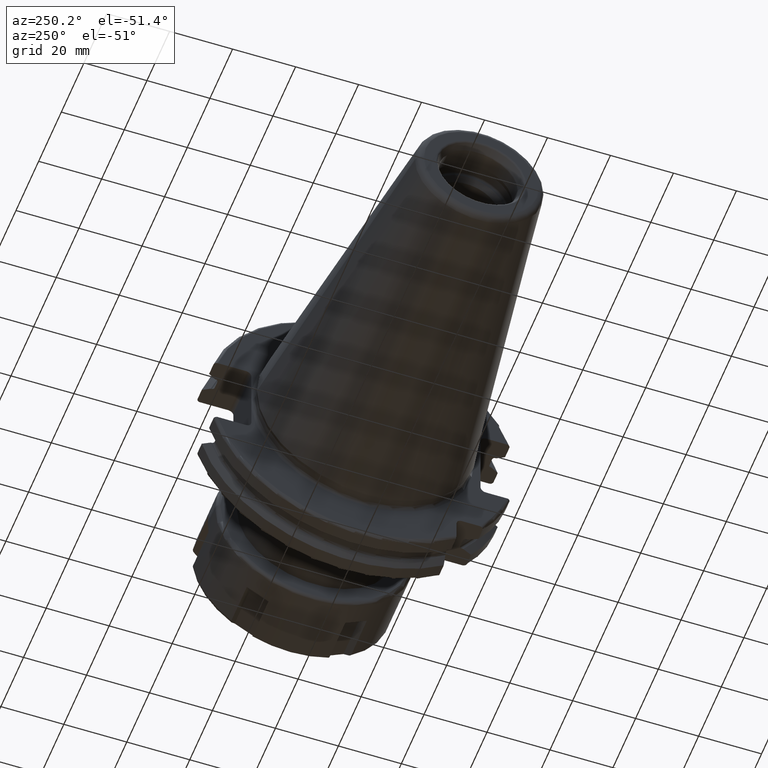
[diagram: clean part render]
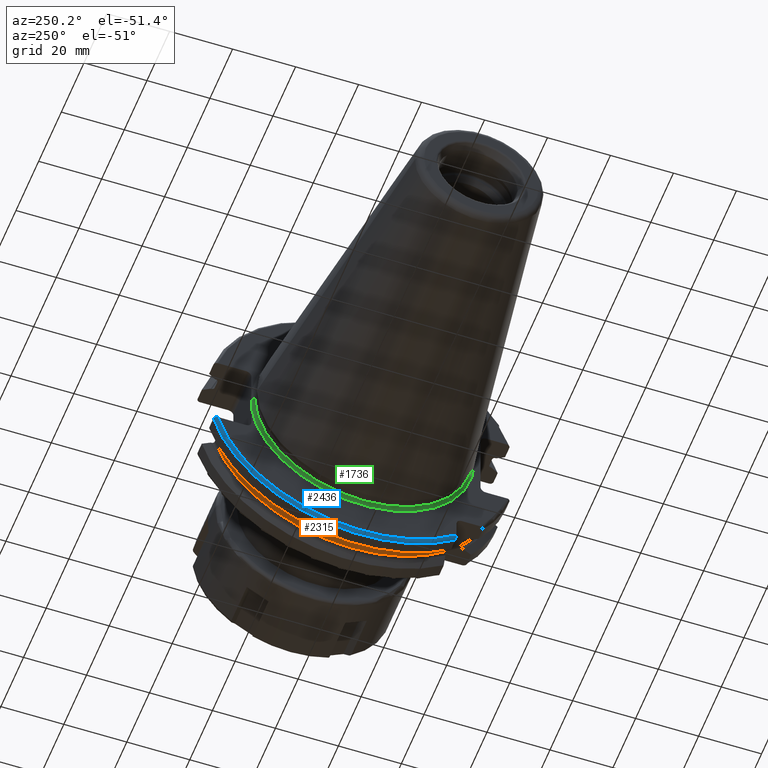
[diagram: same view with three faces highlighted in distinct colors, each labeled with its STEP entity id]
A machine part, auxiliary view with three faces highlighted in distinct colors.
Their STEP definitions:

[orange] entity #2315 — the highlighted cylindrical surface (partial cylindrical patch) has radius 45.5 mm, axis along (1, 0, 0).
#614=CARTESIAN_POINT('',(1.23375E1,0.E0,0.E0));
#615=DIRECTION('',(-1.E0,0.E0,0.E0));
#616=DIRECTION('',(0.E0,9.589673631435E-1,-2.835164835165E-1));
#617=AXIS2_PLACEMENT_3D('',#614,#615,#616);
#657=DIRECTION('',(1.E0,0.E0,0.E0));
#658=VECTOR('',#657,2.325E0);
#659=CARTESIAN_POINT('',(1.00125E1,4.363301502303E1,-1.29E1));
#660=LINE('',#659,#658);
#661=CARTESIAN_POINT('',(1.00125E1,0.E0,0.E0));
#662=DIRECTION('',(-1.E0,0.E0,0.E0));
#663=DIRECTION('',(0.E0,9.589673631435E-1,-2.835164835165E-1));
#664=AXIS2_PLACEMENT_3D('',#661,#662,#663);
#666=DIRECTION('',(1.E0,0.E0,0.E0));
#667=VECTOR('',#666,2.325E0);
#668=CARTESIAN_POINT('',(1.00125E1,-2.985E1,-3.433988206153E1));
#669=LINE('',#668,#667);
#692=CARTESIAN_POINT('',(1.00125E1,4.363301502303E1,-1.29E1));
#1430=VERTEX_POINT('',#692);
#1432=CARTESIAN_POINT('',(1.23375E1,4.363301502303E1,-1.29E1));
#1433=VERTEX_POINT('',#1432);
#1471=CARTESIAN_POINT('',(1.00125E1,-2.985E1,-3.433988206153E1));
#1472=VERTEX_POINT('',#1471);
#1473=CARTESIAN_POINT('',(1.23375E1,-2.985E1,-3.433988206153E1));
#1474=VERTEX_POINT('',#1473);
#2302=CARTESIAN_POINT('',(7.325E0,0.E0,0.E0));
#2303=DIRECTION('',(1.E0,0.E0,0.E0));
#2304=DIRECTION('',(0.E0,-1.E0,0.E0));
#2305=AXIS2_PLACEMENT_3D('',#2302,#2303,#2304);
#2306=CYLINDRICAL_SURFACE('',#2305,4.55E1);
#2307=ORIENTED_EDGE('',*,*,#1928,.F.);
#2309=ORIENTED_EDGE('',*,*,#2308,.T.);
#2311=ORIENTED_EDGE('',*,*,#2310,.T.);
#2312=ORIENTED_EDGE('',*,*,#2280,.F.);
#2313=EDGE_LOOP('',(#2307,#2309,#2311,#2312));
#2314=FACE_OUTER_BOUND('',#2313,.F.);
#2315=ADVANCED_FACE('',(#2314),#2306,.T.);
#618=CIRCLE('',#617,4.55E1);
#665=CIRCLE('',#664,4.55E1);
#1928=EDGE_CURVE('',#1430,#1433,#660,.T.);
#2280=EDGE_CURVE('',#1433,#1474,#618,.T.);
#2308=EDGE_CURVE('',#1430,#1472,#665,.T.);
#2310=EDGE_CURVE('',#1472,#1474,#669,.T.);

[blue] entity #2436 — the highlighted toroidal blend (fillet) surface has major radius 47.7375 mm and minor (blend) radius 1 mm.
#296=CARTESIAN_POINT('',(3.2E0,0.E0,0.E0));
#297=DIRECTION('',(-1.E0,0.E0,0.E0));
#298=DIRECTION('',(0.E0,9.627964123359E-1,-2.702278083268E-1));
#299=AXIS2_PLACEMENT_3D('',#296,#297,#298);
#755=CARTESIAN_POINT('',(3.2E0,4.596149373389E1,-1.29E1));
#756=CARTESIAN_POINT('',(3.2E0,4.604026443227E1,-1.29E1));
#757=CARTESIAN_POINT('',(3.216813255287E0,4.619328239852E1,-1.29E1));
#758=CARTESIAN_POINT('',(3.290538328370E0,4.641376542139E1,-1.29E1));
#759=CARTESIAN_POINT('',(3.409705660893E0,4.661163928454E1,-1.29E1));
#760=CARTESIAN_POINT('',(3.568375595419E0,4.677744698912E1,-1.29E1));
#761=CARTESIAN_POINT('',(3.759602935675E0,4.690321007119E1,-1.29E1));
#762=CARTESIAN_POINT('',(3.974378910530E0,4.698149887214E1,-1.29E1));
#763=CARTESIAN_POINT('',(4.123284460641E0,4.699929686974E1,-1.29E1));
#764=CARTESIAN_POINT('',(4.2E0,4.699929686974E1,-1.29E1));
#766=CARTESIAN_POINT('',(4.2E0,-2.985E1,-3.852689198793E1));
#767=CARTESIAN_POINT('',(4.121351701574E0,-2.985E1,-3.852689198793E1));
#768=CARTESIAN_POINT('',(3.966904735014E0,-2.985E1,-3.850408165447E1));
#769=CARTESIAN_POINT('',(3.738653969764E0,-2.985E1,-3.839864952437E1));
#770=CARTESIAN_POINT('',(3.529185168070E0,-2.985E1,-3.821837887996E1));
#771=CARTESIAN_POINT('',(3.352580918325E0,-2.985E1,-3.796237987635E1));
#772=CARTESIAN_POINT('',(3.229812788304E0,-2.985E1,-3.762998844337E1));
#773=CARTESIAN_POINT('',(3.2E0,-2.985E1,-3.738468079689E1));
#774=CARTESIAN_POINT('',(3.2E0,-2.985E1,-3.725381062724E1));
#776=CARTESIAN_POINT('',(4.2E0,0.E0,0.E0));
#777=DIRECTION('',(-1.E0,0.E0,0.E0));
#778=DIRECTION('',(0.E0,9.643354064066E-1,-2.646832521159E-1));
#779=AXIS2_PLACEMENT_3D('',#776,#777,#778);
#1448=CARTESIAN_POINT('',(4.2E0,4.699929686974E1,-1.29E1));
#1449=VERTEX_POINT('',#1448);
#1465=VERTEX_POINT('',#755);
#1487=CARTESIAN_POINT('',(4.2E0,-2.985E1,-3.852689198793E1));
#1488=VERTEX_POINT('',#1487);
#1489=CARTESIAN_POINT('',(3.2E0,-2.985E1,-3.725381062724E1));
#1490=VERTEX_POINT('',#1489);
#2424=CARTESIAN_POINT('',(4.2E0,0.E0,0.E0));
#2425=DIRECTION('',(1.E0,0.E0,0.E0));
#2426=DIRECTION('',(0.E0,-1.E0,0.E0));
#2427=AXIS2_PLACEMENT_3D('',#2424,#2425,#2426);
#2428=TOROIDAL_SURFACE('',#2427,4.77375E1,1.E0);
#2429=ORIENTED_EDGE('',*,*,#1918,.F.);
#2430=ORIENTED_EDGE('',*,*,#1976,.T.);
#2431=ORIENTED_EDGE('',*,*,#2378,.F.);
#2433=ORIENTED_EDGE('',*,*,#2432,.F.);
#2434=EDGE_LOOP('',(#2429,#2430,#2431,#2433));
#2435=FACE_OUTER_BOUND('',#2434,.F.);
#2436=ADVANCED_FACE('',(#2435),#2428,.T.);
#300=CIRCLE('',#299,4.77375E1);
#765=B_SPLINE_CURVE_WITH_KNOTS('',3,(#755,#756,#757,#758,#759,#760,#761,#762,
#763,#764),.UNSPECIFIED.,.F.,.F.,(4,1,1,1,1,1,1,4),(0.E0,1.428571428571E-1,
2.857142857143E-1,4.285714285714E-1,5.714285714286E-1,7.142857142857E-1,
8.571428571429E-1,1.E0),.UNSPECIFIED.);
#775=B_SPLINE_CURVE_WITH_KNOTS('',3,(#766,#767,#768,#769,#770,#771,#772,#773,
#774),.UNSPECIFIED.,.F.,.F.,(4,1,1,1,1,1,4),(0.E0,1.666666666667E-1,
3.333333333333E-1,5.E-1,6.666666666667E-1,8.333333333333E-1,1.E0),
.UNSPECIFIED.);
#780=CIRCLE('',#779,4.87375E1);
#1918=EDGE_CURVE('',#1465,#1449,#765,.T.);
#1976=EDGE_CURVE('',#1465,#1490,#300,.T.);
#2378=EDGE_CURVE('',#1488,#1490,#775,.T.);
#2432=EDGE_CURVE('',#1449,#1488,#780,.T.);

[green] entity #1736 — the highlighted toroidal blend (fillet) surface has major radius 35.575 mm and minor (blend) radius 1 mm.
#91=CARTESIAN_POINT('',(2.2E0,0.E0,0.E0));
#92=DIRECTION('',(-1.E0,0.E0,0.E0));
#93=DIRECTION('',(0.E0,1.E0,0.E0));
#94=AXIS2_PLACEMENT_3D('',#91,#92,#93);
#96=CARTESIAN_POINT('',(3.161444226151E0,3.53E1,-1.048836461230E-13));
#97=CARTESIAN_POINT('',(3.161444226151E0,3.53E1,-2.287557745851E-1));
#98=CARTESIAN_POINT('',(3.162734010751E0,3.53E1,-6.792530123044E-1));
#99=CARTESIAN_POINT('',(3.167877030309E0,3.53E1,-1.331895850106E0));
#100=CARTESIAN_POINT('',(3.175250793624E0,3.53E1,-1.967616454588E0));
#101=CARTESIAN_POINT('',(3.183670148061E0,3.53E1,-2.589717830169E0));
#102=CARTESIAN_POINT('',(3.191796133338E0,3.53E1,-3.202378106077E0));
#103=CARTESIAN_POINT('',(3.198127290791E0,3.53E1,-3.809054455619E0));
#104=CARTESIAN_POINT('',(3.2E0,3.53E1,-4.213157466434E0));
#105=CARTESIAN_POINT('',(3.2E0,3.53E1,-4.414818795828E0));
#107=CARTESIAN_POINT('',(2.2E0,3.5575E1,0.E0));
#108=DIRECTION('',(0.E0,0.E0,-1.E0));
#109=DIRECTION('',(9.614442261515E-1,-2.75E-1,0.E0));
#110=AXIS2_PLACEMENT_3D('',#107,#108,#109);
#112=CARTESIAN_POINT('',(2.2E0,-3.5575E1,0.E0));
#113=DIRECTION('',(0.E0,0.E0,1.E0));
#114=DIRECTION('',(1.E0,0.E0,0.E0));
#115=AXIS2_PLACEMENT_3D('',#112,#113,#114);
#117=CARTESIAN_POINT('',(3.2E0,0.E0,0.E0));
#118=DIRECTION('',(-1.E0,0.E0,0.E0));
#119=DIRECTION('',(0.E0,9.922698524245E-1,-1.240989120402E-1));
#120=AXIS2_PLACEMENT_3D('',#117,#118,#119);
#945=CARTESIAN_POINT('',(3.161444226151E0,3.53E1,-1.048836461230E-13));
#1326=CARTESIAN_POINT('',(2.2E0,3.4575E1,0.E0));
#1328=VERTEX_POINT('',#1326);
#1330=CARTESIAN_POINT('',(3.2E0,-3.5575E1,0.E0));
#1331=CARTESIAN_POINT('',(2.2E0,-3.4575E1,0.E0));
#1332=VERTEX_POINT('',#1330);
#1333=VERTEX_POINT('',#1331);
#1457=VERTEX_POINT('',#945);
#1458=VERTEX_POINT('',#105);
#1720=CARTESIAN_POINT('',(2.2E0,0.E0,0.E0));
#1721=DIRECTION('',(1.E0,0.E0,0.E0));
#1722=DIRECTION('',(0.E0,-1.E0,0.E0));
#1723=AXIS2_PLACEMENT_3D('',#1720,#1721,#1722);
#1724=TOROIDAL_SURFACE('',#1723,3.5575E1,1.E0);
#1726=ORIENTED_EDGE('',*,*,#1725,.F.);
#1728=ORIENTED_EDGE('',*,*,#1727,.T.);
#1729=ORIENTED_EDGE('',*,*,#1715,.T.);
#1731=ORIENTED_EDGE('',*,*,#1730,.F.);
#1733=ORIENTED_EDGE('',*,*,#1732,.F.);
#1734=EDGE_LOOP('',(#1726,#1728,#1729,#1731,#1733));
#1735=FACE_OUTER_BOUND('',#1734,.F.);
#1736=ADVANCED_FACE('',(#1735),#1724,.F.);
#95=CIRCLE('',#94,3.4575E1);
#106=B_SPLINE_CURVE_WITH_KNOTS('',3,(#96,#97,#98,#99,#100,#101,#102,#103,#104,
#105),.UNSPECIFIED.,.F.,.F.,(4,1,1,1,1,1,1,4),(0.E0,1.428571428571E-1,
2.857142857143E-1,4.285714285714E-1,5.714285714286E-1,7.142857142857E-1,
8.571428571429E-1,1.E0),.UNSPECIFIED.);
#111=CIRCLE('',#110,1.E0);
#116=CIRCLE('',#115,1.E0);
#121=CIRCLE('',#120,3.5575E1);
#1715=EDGE_CURVE('',#1328,#1333,#95,.T.);
#1725=EDGE_CURVE('',#1457,#1458,#106,.T.);
#1727=EDGE_CURVE('',#1457,#1328,#111,.T.);
#1730=EDGE_CURVE('',#1332,#1333,#116,.T.);
#1732=EDGE_CURVE('',#1458,#1332,#121,.T.);